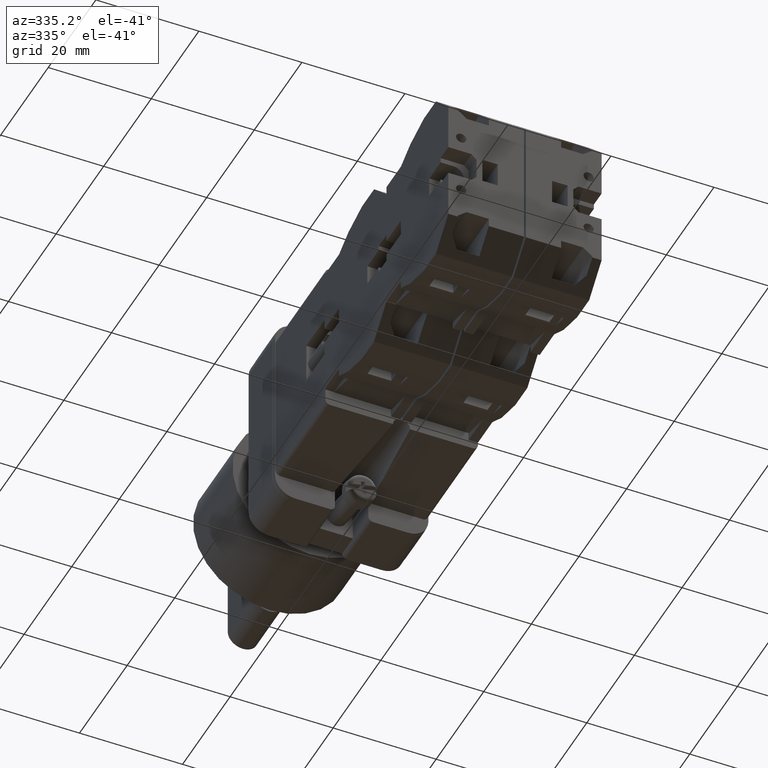
[diagram: clean part render]
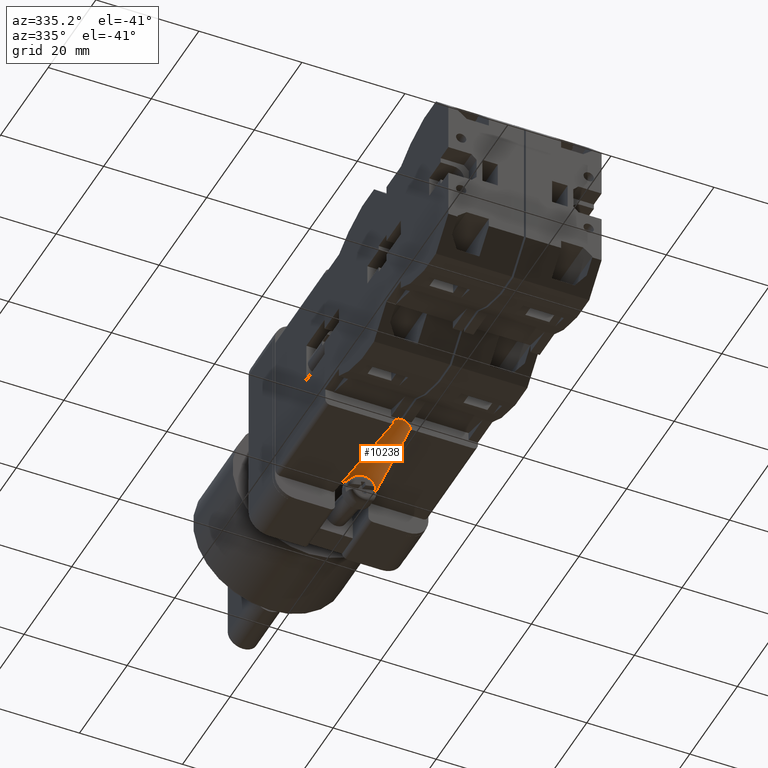
[diagram: same view with one face highlighted and labeled with its STEP entity id]
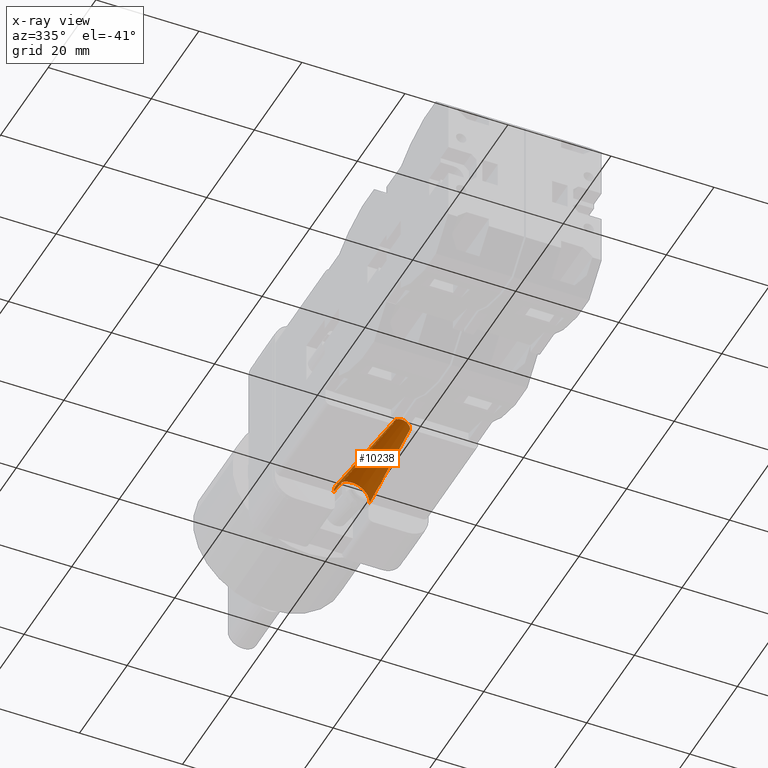
[diagram: x-ray of the same camera — body ghosted, the highlighted face saturated]
A machine part, auxiliary view. The second image highlights one B-rep face of the part: STEP entity #10238.
The next image is the same camera in x-ray: the body ghosted, the highlighted face saturated — about 0% of this face is hidden behind the body in this view.
In plain terms, the highlighted conical surface has half-angle 5 deg.
Its self-contained STEP definition (entity closure, byte-faithful):
#445 = DIRECTION ( 'NONE',  ( 0.0000000000000000000, -0.9961946980917454300, -0.08715574274765822100 ) ) ;
#984 = ORIENTED_EDGE ( 'NONE', *, *, #16527, .F. ) ;
#1103 = LINE ( 'NONE', #8803, #8526 ) ;
#1572 = EDGE_CURVE ( 'NONE', #17559, #9303, #2837, .T. ) ;
#2073 = CARTESIAN_POINT ( 'NONE',  ( -0.6220472440944883100, 0.4133858267716535900, 1.365923996832131600E-016 ) ) ;
#2154 = CARTESIAN_POINT ( 'NONE',  ( -0.6220472440944883100, 0.4133858267716535900, 1.365923996832131600E-016 ) ) ;
#2837 = CIRCLE ( 'NONE', #3290, 0.1377952755905511900 ) ;
#3290 = AXIS2_PLACEMENT_3D ( 'NONE', #2073, #3757, #3362 ) ;
#3362 = DIRECTION ( 'NONE',  ( 0.0000000000000000000, 0.0000000000000000000, 1.000000000000000000 ) ) ;
#3757 = DIRECTION ( 'NONE',  ( 0.0000000000000000000, 1.000000000000000000, 0.0000000000000000000 ) ) ;
#5208 = VECTOR ( 'NONE', #12199, 39.37007874015748100 ) ;
#5928 = CARTESIAN_POINT ( 'NONE',  ( -0.6220472440944883100, 0.4133858267716535900, 0.1377952755905513200 ) ) ;
#6372 = EDGE_CURVE ( 'NONE', #11437, #9771, #7036, .T. ) ;
#6620 = CARTESIAN_POINT ( 'NONE',  ( -0.6220472440944883100, -0.4133858267716535900, 0.06546212858092909100 ) ) ;
#7036 = CIRCLE ( 'NONE', #7515, 0.06546212858092895200 ) ;
#7308 = CARTESIAN_POINT ( 'NONE',  ( -0.6220472440944883100, -0.4133858267716535900, 1.365923996832131600E-016 ) ) ;
#7515 = AXIS2_PLACEMENT_3D ( 'NONE', #7308, #16962, #8683 ) ;
#8526 = VECTOR ( 'NONE', #445, 39.37007874015748100 ) ;
#8683 = DIRECTION ( 'NONE',  ( 0.0000000000000000000, 0.0000000000000000000, 1.000000000000000000 ) ) ;
#8803 = CARTESIAN_POINT ( 'NONE',  ( -0.6220472440944883100, -1.161621380301759400, 1.365923996832131600E-016 ) ) ;
#9073 = DIRECTION ( 'NONE',  ( 0.0000000000000000000, 0.0000000000000000000, 1.000000000000000000 ) ) ;
#9303 = VERTEX_POINT ( 'NONE', #12852 ) ;
#9771 = VERTEX_POINT ( 'NONE', #16292 ) ;
#10238 = ADVANCED_FACE ( 'NONE', ( #15672 ), #15223, .F. ) ;
#11437 = VERTEX_POINT ( 'NONE', #6620 ) ;
#11724 = ORIENTED_EDGE ( 'NONE', *, *, #6372, .F. ) ;
#11937 = EDGE_LOOP ( 'NONE', ( #11724, #984, #12753, #13794 ) ) ;
#12199 = DIRECTION ( 'NONE',  ( 0.0000000000000000000, 0.9961946980917454300, -0.08715574274765822100 ) ) ;
#12541 = LINE ( 'NONE', #17779, #5208 ) ;
#12753 = ORIENTED_EDGE ( 'NONE', *, *, #1572, .T. ) ;
#12852 = CARTESIAN_POINT ( 'NONE',  ( -0.6220472440944883100, 0.4133858267716535900, -0.1377952755905510500 ) ) ;
#13669 = EDGE_CURVE ( 'NONE', #9771, #9303, #12541, .T. ) ;
#13794 = ORIENTED_EDGE ( 'NONE', *, *, #13669, .F. ) ;
#15223 = CONICAL_SURFACE ( 'NONE', #16937, 0.1377952755905511900, 0.08726646259971651600 ) ;
#15672 = FACE_OUTER_BOUND ( 'NONE', #11937, .T. ) ;
#15965 = DIRECTION ( 'NONE',  ( -0.0000000000000000000, 1.000000000000000000, -0.0000000000000000000 ) ) ;
#16292 = CARTESIAN_POINT ( 'NONE',  ( -0.6220472440944883100, -0.4133858267716535900, -0.06546212858092881300 ) ) ;
#16527 = EDGE_CURVE ( 'NONE', #17559, #11437, #1103, .T. ) ;
#16937 = AXIS2_PLACEMENT_3D ( 'NONE', #2154, #15965, #9073 ) ;
#16962 = DIRECTION ( 'NONE',  ( 0.0000000000000000000, 1.000000000000000000, 0.0000000000000000000 ) ) ;
#17559 = VERTEX_POINT ( 'NONE', #5928 ) ;
#17779 = CARTESIAN_POINT ( 'NONE',  ( -0.6220472440944883100, -1.161621380301759400, 1.365923996832131600E-016 ) ) ;